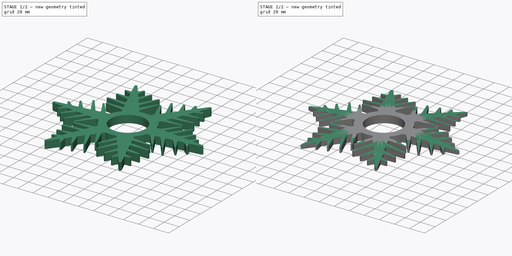
[diagram: build sequence overview — one tinted view per stage of 2, left to right]
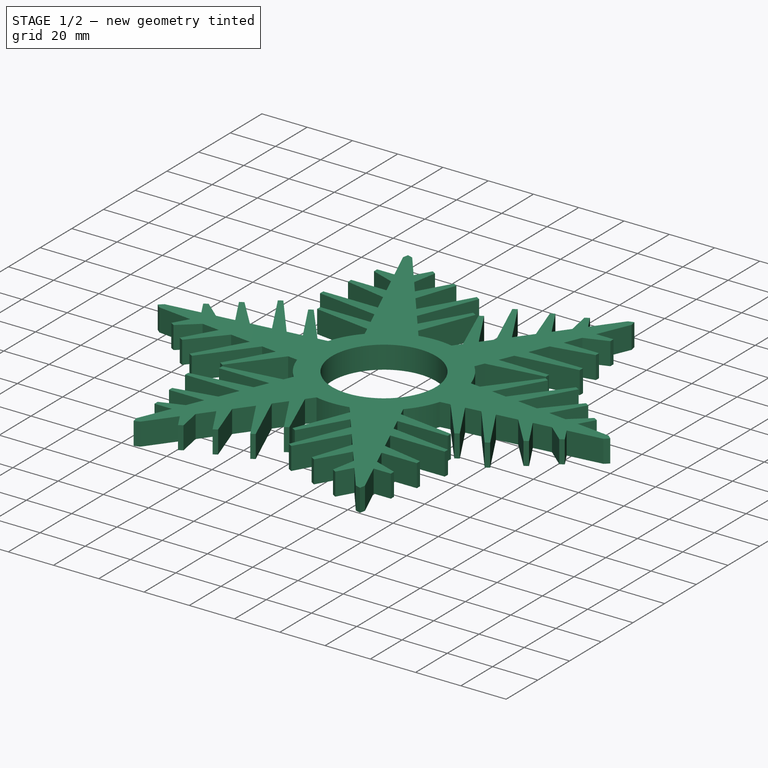
[diagram: stage 1 of 2 — iso view after this stage's code; geometry added in this stage tinted green]
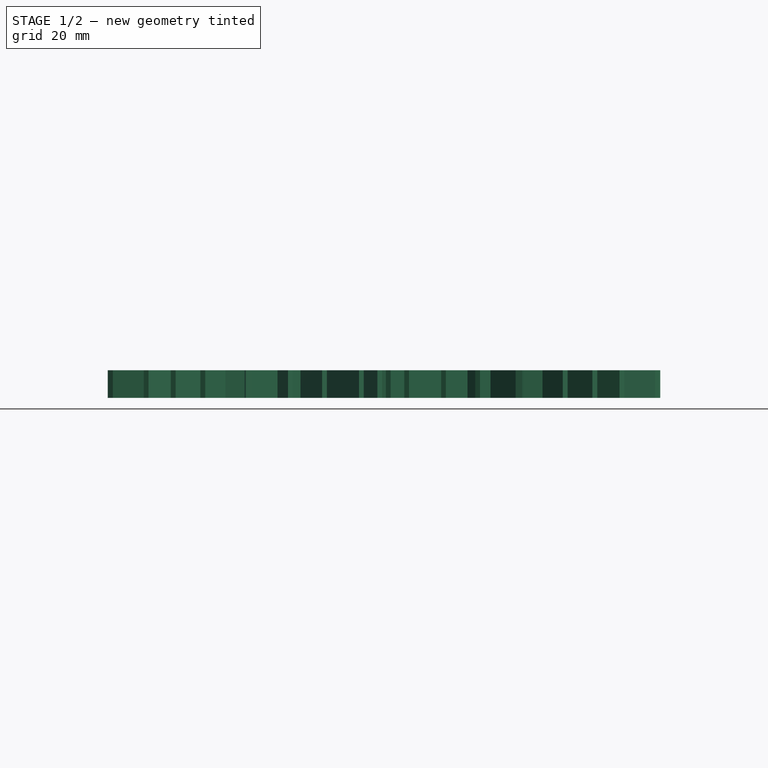
[diagram: stage 1 of 2 — front view after this stage's code; geometry added in this stage tinted green]
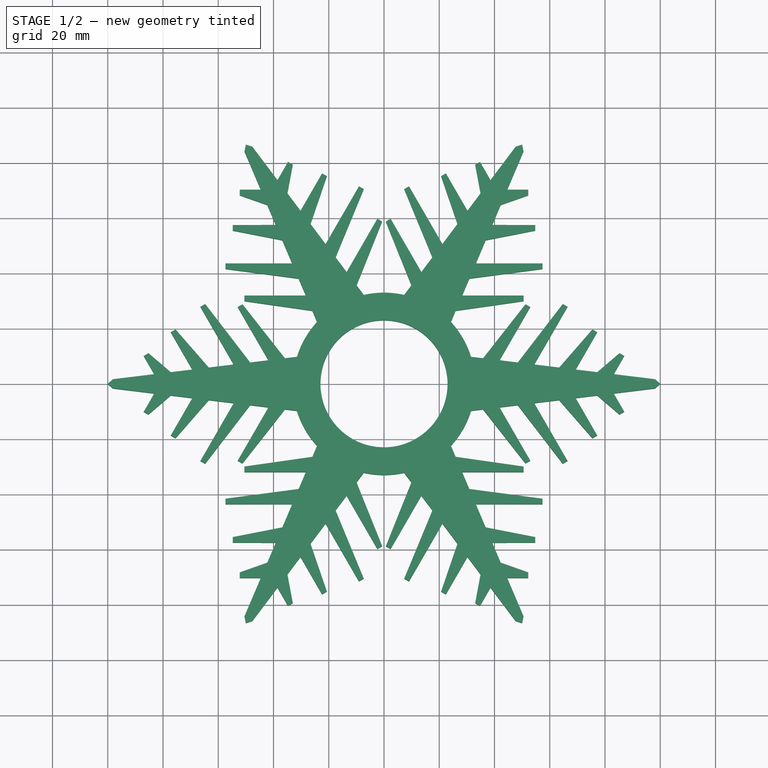
[diagram: stage 1 of 2 — top view after this stage's code; geometry added in this stage tinted green]
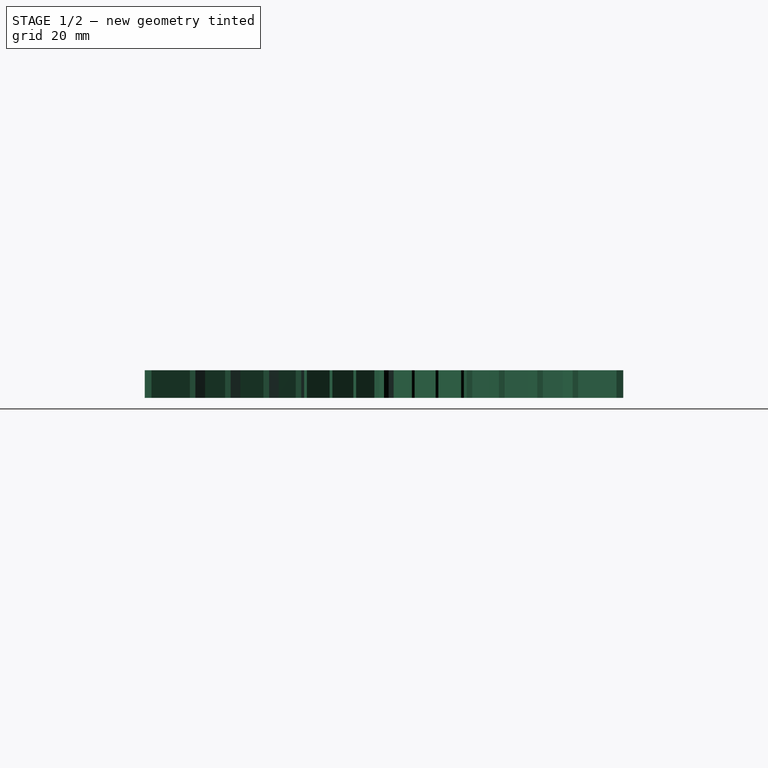
[diagram: stage 1 of 2 — right view after this stage's code; geometry added in this stage tinted green]
FCSTD DOCUMENT  (FreeCAD 0.17R13541 (Git))
Label: SkiBaskets2
License: All rights reserved
LicenseURL: http://en.wikipedia.org/wiki/All_rights_reserved
objects: Sketcher::SketchObject×2, PartDesign::Pad×1, PartDesign::Mirrored×1, PartDesign::PolarPattern×1, PartDesign::MultiTransform×1, PartDesign::Groove×1, PartDesign::Body×1
note: 10 computed .brp shape members not serialized (recipe doc carries the construction recipe); baked Part::Feature solids carry a one-line shape summary decoded from their .brp

FEATURE [Sketcher::SketchObject] Sketch
  MapMode = 5
  Support = -> [XY_Plane]
  sketch-geometry (25):
    g0: LineSegment [constr] StartX=0 StartY=0 StartZ=0 EndX=60.6218 EndY=35 EndZ=0
    g1: LineSegment [constr] StartX=60.6218 StartY=35 StartZ=0 EndX=100 EndY=0 EndZ=0
    g2: LineSegment StartX=31.518 StartY=9.77848 StartZ=0 EndX=35.8658 EndY=9.24864 EndZ=0
    g3: LineSegment StartX=35.8658 StartY=9.24864 StartZ=0 EndX=51.2197 EndY=28.8006 EndZ=0
    g4: LineSegment StartX=51.2197 StartY=28.8006 StartZ=0 EndX=52.9517 EndY=27.8006 EndZ=0
    g5: LineSegment StartX=52.9517 StartY=27.8006 StartZ=0 EndX=41.8217 EndY=8.52284 EndZ=0
    g6: LineSegment StartX=41.8217 StartY=8.52284 StartZ=0 EndX=48.4328 EndY=7.7172 EndZ=0
    g7: LineSegment StartX=48.4328 StartY=7.7172 StartZ=0 EndX=64.7166 EndY=28.902 EndZ=0
    g8: LineSegment StartX=64.7166 StartY=28.902 StartZ=0 EndX=66.4491 EndY=27.9028 EndZ=0
    g9: LineSegment StartX=66.4491 StartY=27.9028 StartZ=0 EndX=54.3888 EndY=6.9914 EndZ=0
    g10: LineSegment StartX=54.3888 StartY=6.9914 StartZ=0 EndX=63.4219 EndY=5.8906 EndZ=0
    g11: LineSegment StartX=63.4219 StartY=5.8906 StartZ=0 EndX=75.4471 EndY=19.685 EndZ=0
    g12: LineSegment StartX=75.4471 StartY=19.685 StartZ=0 EndX=77.1794 EndY=18.6855 EndZ=0
    g13: LineSegment StartX=77.1794 StartY=18.6855 StartZ=0 EndX=69.3779 EndY=5.16479 EndZ=0
    g14: LineSegment StartX=69.3779 StartY=5.16479 StartZ=0 EndX=77.2007 EndY=4.21149 EndZ=0
    g15: LineSegment StartX=77.2007 StartY=4.21149 StartZ=0 EndX=85.2356 EndY=11.0945 EndZ=0
    g16: LineSegment StartX=85.2356 StartY=11.0945 StartZ=0 EndX=86.9682 EndY=10.0955 EndZ=0
    g17: LineSegment StartX=86.9682 StartY=10.0955 StartZ=0 EndX=83.1566 EndY=3.48569 EndZ=0
    g18: LineSegment StartX=83.1566 StartY=3.48569 StartZ=0 EndX=98.1314 EndY=1.66083 EndZ=0
    g19: LineSegment StartX=98.1314 StartY=1.66083 StartZ=0 EndX=100 EndY=0 EndZ=0
    g20: LineSegment StartX=100 StartY=0 StartZ=0 EndX=23 EndY=0 EndZ=0
    g21: LineSegment [constr] StartX=19.9084 StartY=11.1932 StartZ=0 EndX=98.1314 EndY=1.66083 EndZ=0
    g22: ArcOfCircle CenterX=0 CenterY=0 CenterZ=0 NormalX=0 NormalY=0 NormalZ=1 AngleXU=0 Radius=23 StartAngle=0 EndAngle=1.5708
    g23: ArcOfCircle CenterX=0 CenterY=0 CenterZ=0 NormalX=0 NormalY=0 NormalZ=1 AngleXU=0 Radius=33 StartAngle=0.300835 EndAngle=1.5708
    g24: LineSegment StartX=0 StartY=23 StartZ=0 EndX=0 EndY=33 EndZ=0
  constraints (71):
    c: Coincident(g0,g-1)
    c: DistanceX(g-1,g1) = 100
    c: Angle(g-1,g0) = 0.523599
    c: Coincident(g1,g0)
    c: Distance(g0) = 70
    c: Coincident(g3,g2)
    c: Coincident(g4,g3)
    c: Coincident(g5,g4)
    c: Coincident(g6,g5)
    c: Coincident(g7,g6)
    c: Coincident(g8,g7)
    c: Coincident(g9,g8)
    c: Coincident(g10,g9)
    c: Coincident(g12,g11)
    c: Coincident(g13,g12)
    c: Coincident(g14,g13)
    c: Coincident(g15,g14)
    c: Coincident(g16,g15)
    c: Coincident(g17,g16)
    c: Coincident(g18,g17)
    c: Coincident(g19,g18)
    c: Coincident(g21,g18)
    c: PointOnObject(g18,g1)
    c: PointOnObject(g17,g21)
    c: PointOnObject(g14,g21)
    c: PointOnObject(g13,g21)
    c: PointOnObject(g10,g21)
    c: Coincident(g11,g10)
    c: PointOnObject(g9,g21)
    c: PointOnObject(g6,g21)
    c: PointOnObject(g5,g21)
    c: PointOnObject(g2,g21)
    c: PointOnObject(g2,g21)
    c: Coincident(g1,g19)
    c: Coincident(g1,g20)
    c: Horizontal(g20)
    c: PointOnObject(g1,g-1)
    c: Coincident(g22,g-1)
    c: PointOnObject(g22,g-2)
    c: PointOnObject(g22,g-1)
    c: Coincident(g23,g-1)
    c: PointOnObject(g23,g-2)
    c: Coincident(g23,g2)
    c: Coincident(g24,g22)
    c: Coincident(g24,g23)
    c: Radius(g22) = 23
    c: Distance(g24) = 10
    c: Distance(g19) = 2.5
    c: Distance(g16) = 2
    c: Perpendicular(g17,g16)
    c: Perpendicular(g12,g13)
    c: Distance(g12) = 2
    c: Perpendicular(g8,g9)
    c: Distance(g8) = 2
    c: Perpendicular(g5,g4)
    c: Distance(g4) = 2
    c: Distance(g2,g5) = 6
    c: Distance(g6,g9) = 6
    c: Distance(g10,g13) = 6
    c: Distance(g14,g17) = 6
    c: Distance(g2) = 4.38
    c: Distance(g3) = 24.86
    c: Distance(g5) = 22.26
    c: Distance(g7) = 26.72
    c: Distance(g9) = 24.14
    c: Distance(g11) = 18.3
    c: Distance(g13) = 15.61
    c: Distance(g15) = 10.58
    c: Distance(g17) = 7.63
    c: Distance(g6) = 6.66
    c: Distance(g10) = 9.1
FEATURE [PartDesign::Pad] Pad
  Length = 10
  Length2 = 100
  Profile = -> Sketch
  Type = 0
FEATURE [Sketcher::SketchObject] Sketch001
  MapMode = 5
  Placement = pos=(0,0,0) rot=(1,0,0;1.5708rad)
  Support = -> [Pad]
  sketch-geometry (3):
    g0: LineSegment StartX=23 StartY=12 StartZ=0 EndX=103 EndY=12 EndZ=0
    g1: LineSegment StartX=103 StartY=12 StartZ=0 EndX=103 EndY=4 EndZ=0
    g2: LineSegment StartX=103 StartY=4 StartZ=0 EndX=23 EndY=12 EndZ=0
  constraints (9):
    c: Horizontal(g0)
    c: Coincident(g1,g0)
    c: Vertical(g1)
    c: Coincident(g2,g1)
    c: Coincident(g2,g0)
    c: DistanceX(g0) = 23
    c: DistanceY(g0) = 12
    c: Distance(g0) = 80
    c: Distance(g1) = 8
FEATURE [PartDesign::Mirrored] Mirrored
  MirrorPlane = -> Sketch [H_Axis]
FEATURE [PartDesign::PolarPattern] PolarPattern
  Angle = 360
  Axis = -> Sketch [N_Axis]
  Occurrences = 6
FEATURE [PartDesign::MultiTransform] MultiTransform
  BaseFeature = -> Pad
  Originals = -> [Pad]
  Transformations = -> [Mirrored,PolarPattern]
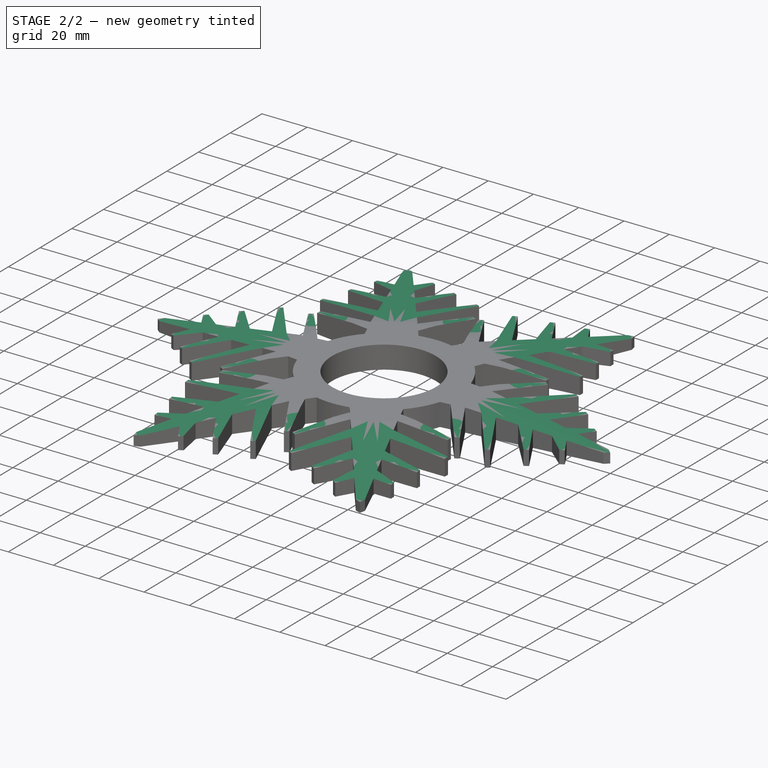
[diagram: stage 2 of 2 — iso view after this stage's code; geometry added in this stage tinted green]
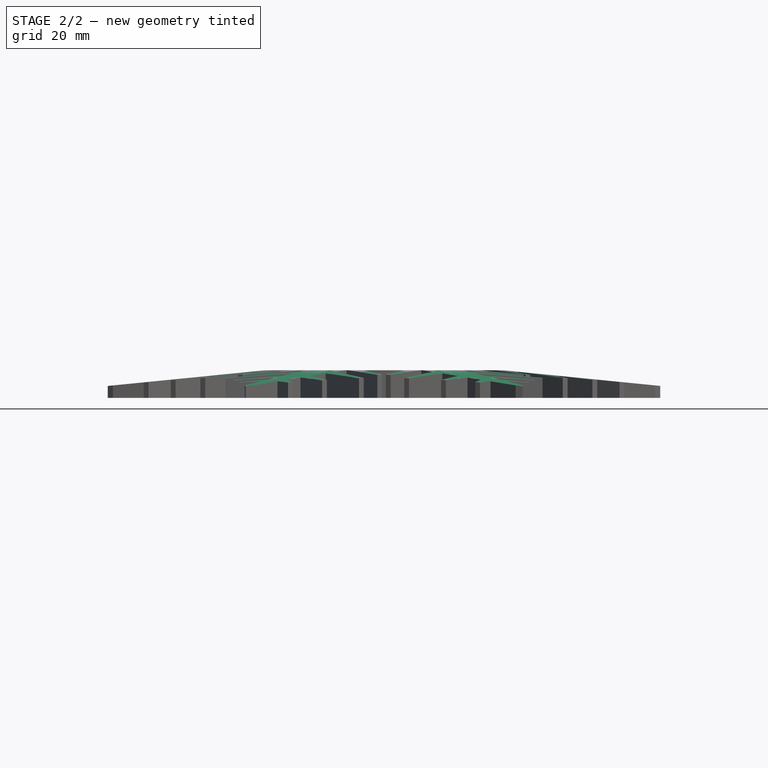
[diagram: stage 2 of 2 — front view after this stage's code; geometry added in this stage tinted green]
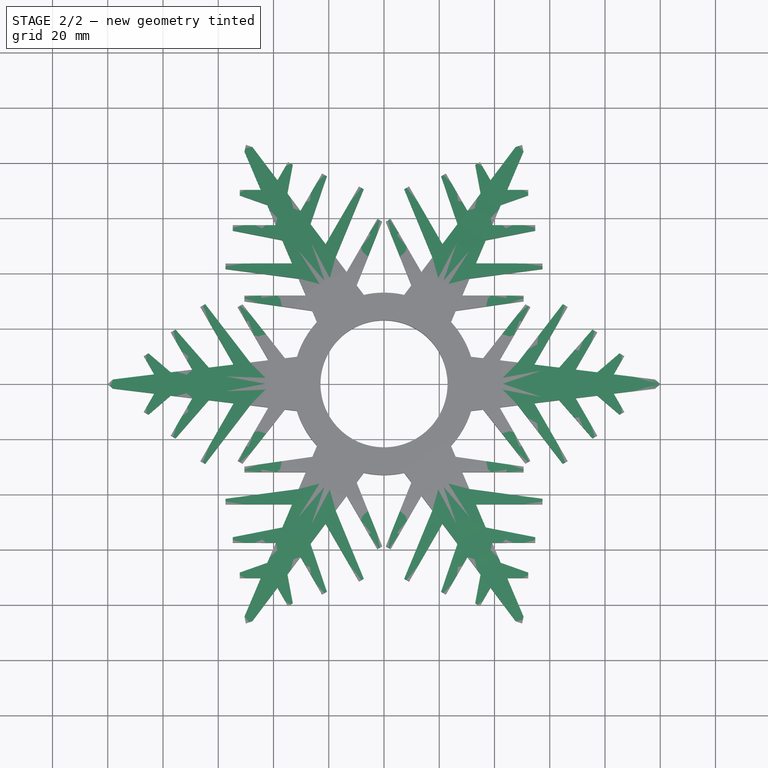
[diagram: stage 2 of 2 — top view after this stage's code; geometry added in this stage tinted green]
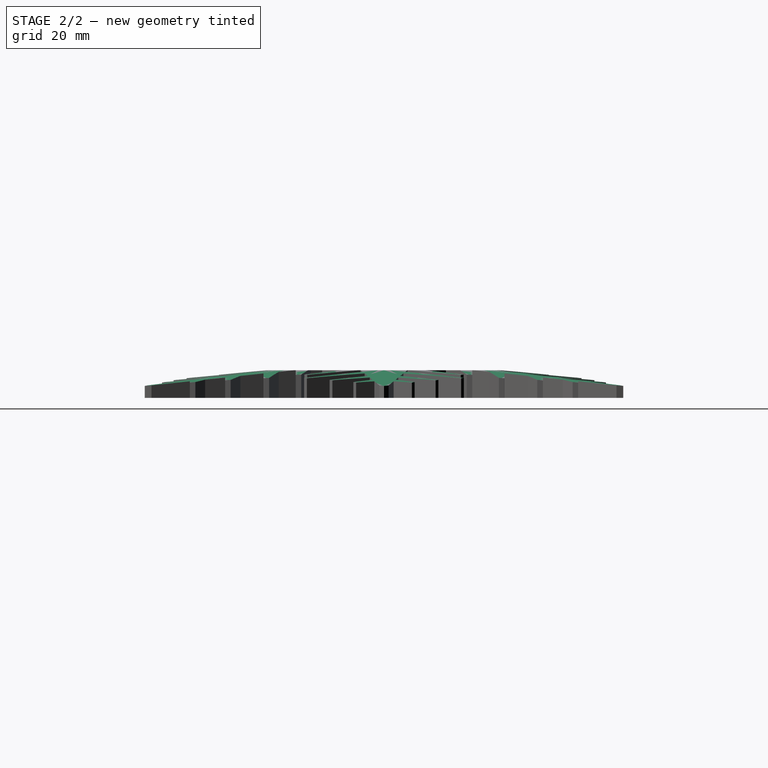
[diagram: stage 2 of 2 — right view after this stage's code; geometry added in this stage tinted green]
FEATURE [PartDesign::Groove] Groove
  Angle = 360
  Axis = (0,0,1)
  Base = (0,0,0)
  BaseFeature = -> MultiTransform
  Profile = -> Sketch001
  ReferenceAxis = -> Sketch001 [V_Axis]
FEATURE [PartDesign::Body] Body
  Group = -> [Sketch,Pad,MultiTransform,Sketch001,Mirrored,PolarPattern,Groove]
  Origin = -> Origin
  Tip = -> Groove
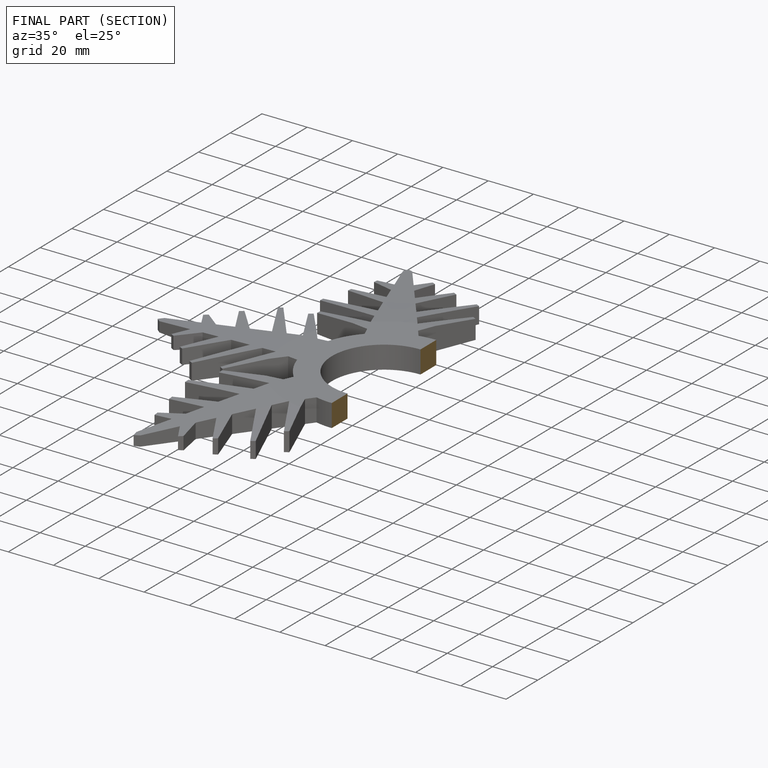
[diagram: finished part — half-section view (interior)]
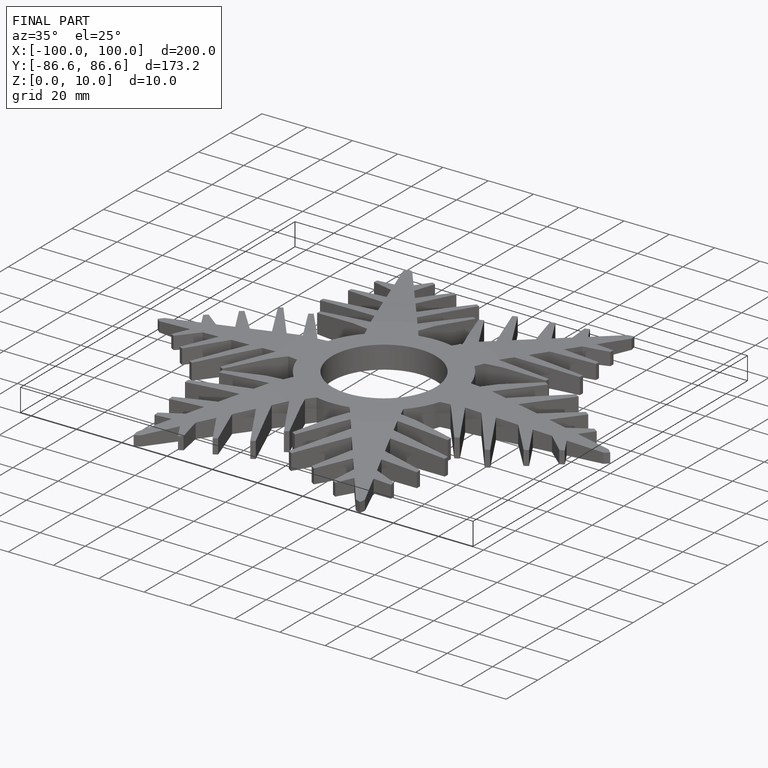
[diagram: finished part — iso view with bounding-box wireframe]
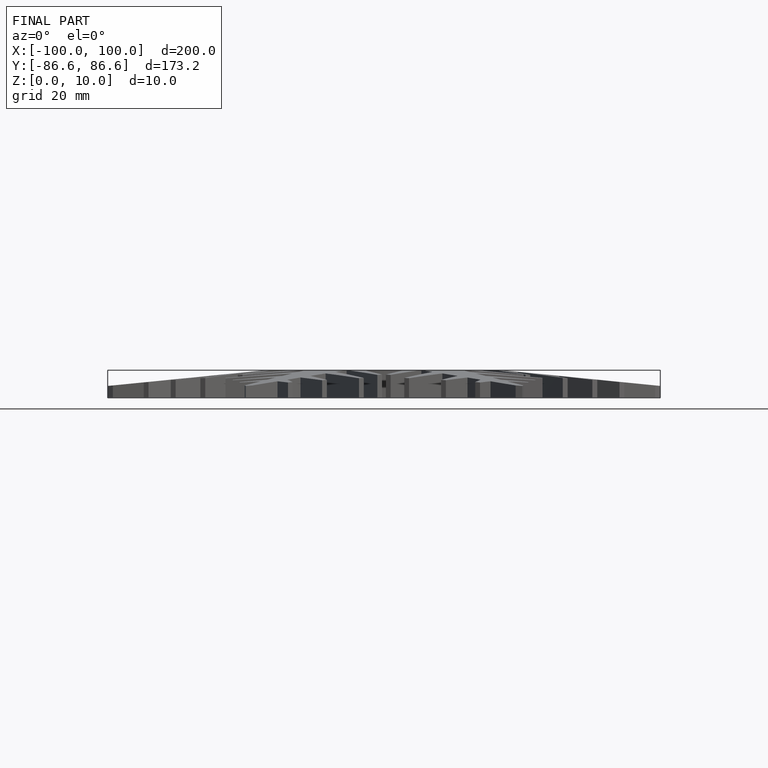
[diagram: finished part — front view with bounding-box wireframe]
